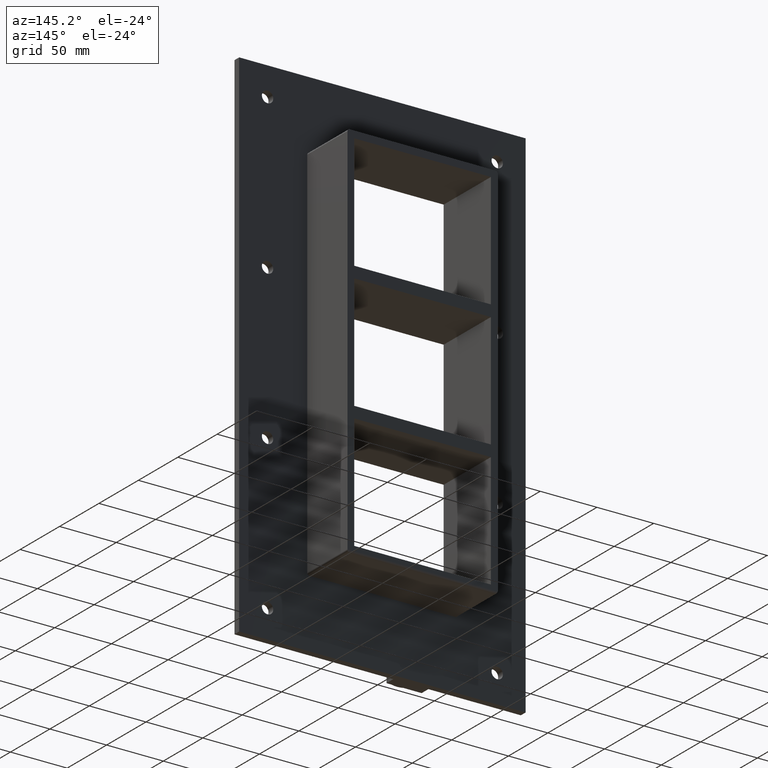
[diagram: clean part render]
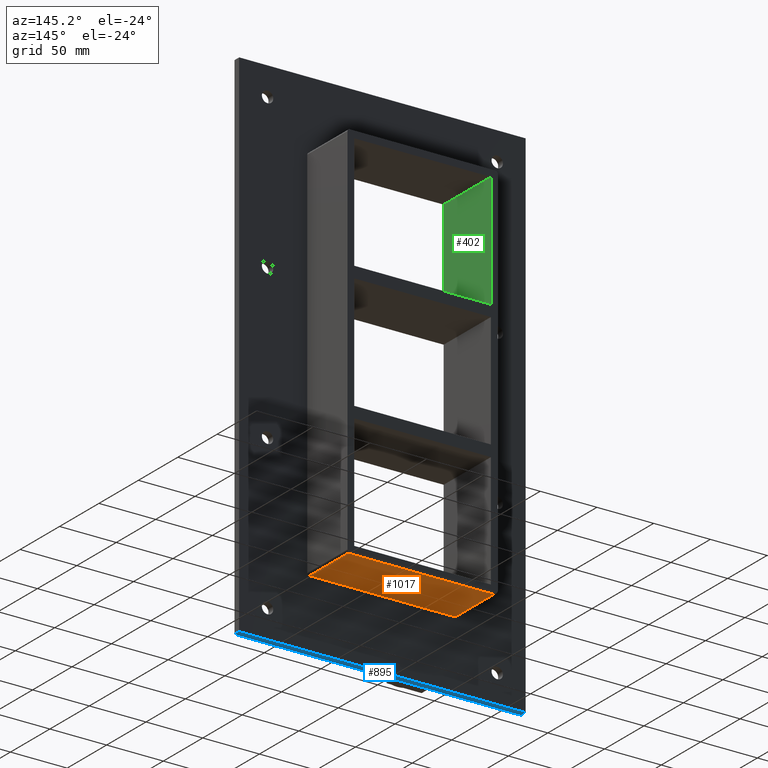
[diagram: same view with three faces highlighted in distinct colors, each labeled with its STEP entity id]
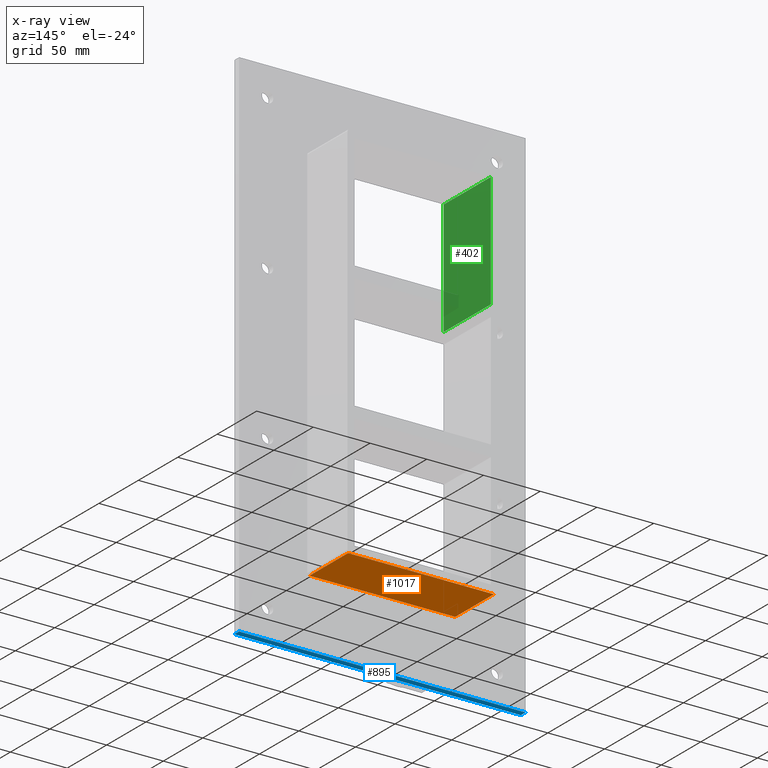
[diagram: x-ray of the same camera — body ghosted, the three highlighted faces saturated]
A machine part, auxiliary view with three faces highlighted in distinct colors.
The next image is the same camera in x-ray (body ghosted, the three faces saturated) — at least one of them is partly hidden behind the body in this view.
Their STEP definitions:

[orange] entity #1017 — the highlighted planar face has unit normal (0, 0, -1).
#671=CARTESIAN_POINT('',(-64.25,6.000000000000001,-167.5));
#672=VERTEX_POINT('',#671);
#680=CARTESIAN_POINT('',(64.25,6.000000000000001,-167.5));
#681=VERTEX_POINT('',#680);
#682=CARTESIAN_POINT('',(64.25,6.000000000000001,-167.5));
#683=DIRECTION('',(-1.0,0.0,0.0));
#684=VECTOR('',#683,128.5);
#685=LINE('',#682,#684);
#686=EDGE_CURVE('',#681,#672,#685,.T.);
#987=CARTESIAN_POINT('',(66.25,0.0,-167.5));
#988=DIRECTION('',(0.0,0.0,-1.0));
#989=DIRECTION('',(-1.0,0.0,0.0));
#990=AXIS2_PLACEMENT_3D('',#987,#988,#989);
#991=PLANE('',#990);
#992=ORIENTED_EDGE('',*,*,#686,.T.);
#993=CARTESIAN_POINT('',(-64.25,55.0,-167.5));
#994=VERTEX_POINT('',#993);
#995=CARTESIAN_POINT('',(-64.25,55.0,-167.5));
#996=DIRECTION('',(0.0,-1.0,0.0));
#997=VECTOR('',#996,49.0);
#998=LINE('',#995,#997);
#999=EDGE_CURVE('',#994,#672,#998,.T.);
#1000=ORIENTED_EDGE('',*,*,#999,.F.);
#1001=CARTESIAN_POINT('',(64.25,55.0,-167.5));
#1002=VERTEX_POINT('',#1001);
#1003=CARTESIAN_POINT('',(64.25,55.0,-167.5));
#1004=DIRECTION('',(-1.0,0.0,0.0));
#1005=VECTOR('',#1004,128.5);
#1006=LINE('',#1003,#1005);
#1007=EDGE_CURVE('',#1002,#994,#1006,.T.);
#1008=ORIENTED_EDGE('',*,*,#1007,.F.);
#1009=CARTESIAN_POINT('',(64.25,6.000000000000001,-167.5));
#1010=DIRECTION('',(0.0,1.0,0.0));
#1011=VECTOR('',#1010,49.0);
#1012=LINE('',#1009,#1011);
#1013=EDGE_CURVE('',#681,#1002,#1012,.T.);
#1014=ORIENTED_EDGE('',*,*,#1013,.F.);
#1015=EDGE_LOOP('',(#992,#1000,#1008,#1014));
#1016=FACE_OUTER_BOUND('',#1015,.T.);
#1017=ADVANCED_FACE('',(#1016),#991,.T.);

[blue] entity #895 — the highlighted planar face has unit normal (0, 0, -1).
#604=CARTESIAN_POINT('',(126.25,6.000000000000001,-227.49999999999997));
#605=VERTEX_POINT('',#604);
#612=CARTESIAN_POINT('',(-126.25,6.000000000000001,-227.49999999999997));
#613=VERTEX_POINT('',#612);
#614=CARTESIAN_POINT('',(126.24999999999999,6.000000000000001,-227.5));
#615=DIRECTION('',(-1.0,0.0,0.0));
#616=VECTOR('',#615,252.5);
#617=LINE('',#614,#616);
#618=EDGE_CURVE('',#605,#613,#617,.T.);
#738=CARTESIAN_POINT('',(-126.25,0.0,-227.5));
#739=VERTEX_POINT('',#738);
#746=CARTESIAN_POINT('',(126.24999999999999,0.0,-227.5));
#747=VERTEX_POINT('',#746);
#748=CARTESIAN_POINT('',(126.24999999999999,0.0,-227.5));
#749=DIRECTION('',(-1.0,0.0,0.0));
#750=VECTOR('',#749,252.5);
#751=LINE('',#748,#750);
#752=EDGE_CURVE('',#747,#739,#751,.T.);
#870=CARTESIAN_POINT('',(-126.25,0.0,-227.5));
#871=DIRECTION('',(0.0,1.0,0.0));
#872=VECTOR('',#871,6.000000000000001);
#873=LINE('',#870,#872);
#874=EDGE_CURVE('',#739,#613,#873,.T.);
#879=CARTESIAN_POINT('',(126.24999999999999,0.0,-227.5));
#880=DIRECTION('',(0.0,0.0,-1.0));
#881=DIRECTION('',(-1.0,0.0,0.0));
#882=AXIS2_PLACEMENT_3D('',#879,#880,#881);
#883=PLANE('',#882);
#884=ORIENTED_EDGE('',*,*,#752,.T.);
#885=ORIENTED_EDGE('',*,*,#874,.T.);
#886=ORIENTED_EDGE('',*,*,#618,.F.);
#887=CARTESIAN_POINT('',(126.24999999999999,0.0,-227.5));
#888=DIRECTION('',(0.0,1.0,0.0));
#889=VECTOR('',#888,6.000000000000001);
#890=LINE('',#887,#889);
#891=EDGE_CURVE('',#747,#605,#890,.T.);
#892=ORIENTED_EDGE('',*,*,#891,.F.);
#893=EDGE_LOOP('',(#884,#885,#886,#892));
#894=FACE_OUTER_BOUND('',#893,.T.);
#895=ADVANCED_FACE('',(#894),#883,.T.);

[green] entity #402 — the highlighted planar face has unit normal (-1, 0, 0).
#337=CARTESIAN_POINT('',(-60.249999999998764,-3.0,60.500000000000469));
#338=VERTEX_POINT('',#337);
#355=CARTESIAN_POINT('',(-60.249999999998764,57.0,60.500000000000469));
#356=VERTEX_POINT('',#355);
#363=CARTESIAN_POINT('',(-60.25,-3.0,60.500000000000469));
#364=DIRECTION('',(0.0,1.0,0.0));
#365=VECTOR('',#364,60.000000000000007);
#366=LINE('',#363,#365);
#367=EDGE_CURVE('',#338,#356,#366,.T.);
#372=CARTESIAN_POINT('',(-60.25,0.0,-161.50000000000003));
#373=DIRECTION('',(-1.0,0.0,0.0));
#374=DIRECTION('',(0.0,0.0,1.0));
#375=AXIS2_PLACEMENT_3D('',#372,#373,#374);
#376=PLANE('',#375);
#377=ORIENTED_EDGE('',*,*,#367,.T.);
#378=CARTESIAN_POINT('',(-60.250000000000014,57.0,161.50000000000003));
#379=VERTEX_POINT('',#378);
#380=CARTESIAN_POINT('',(-60.25,57.0,161.5));
#381=DIRECTION('',(0.0,0.0,-1.0));
#382=VECTOR('',#381,100.99999999999953);
#383=LINE('',#380,#382);
#384=EDGE_CURVE('',#379,#356,#383,.T.);
#385=ORIENTED_EDGE('',*,*,#384,.F.);
#386=CARTESIAN_POINT('',(-60.250000000000014,-3.0,161.50000000000003));
#387=VERTEX_POINT('',#386);
#388=CARTESIAN_POINT('',(-60.25,-3.0,161.50000000000003));
#389=DIRECTION('',(0.0,1.0,0.0));
#390=VECTOR('',#389,60.0);
#391=LINE('',#388,#390);
#392=EDGE_CURVE('',#387,#379,#391,.T.);
#393=ORIENTED_EDGE('',*,*,#392,.F.);
#394=CARTESIAN_POINT('',(-60.25,-3.0,60.500000000000469));
#395=DIRECTION('',(0.0,0.0,1.0));
#396=VECTOR('',#395,100.99999999999953);
#397=LINE('',#394,#396);
#398=EDGE_CURVE('',#338,#387,#397,.T.);
#399=ORIENTED_EDGE('',*,*,#398,.F.);
#400=EDGE_LOOP('',(#377,#385,#393,#399));
#401=FACE_OUTER_BOUND('',#400,.T.);
#402=ADVANCED_FACE('',(#401),#376,.F.);